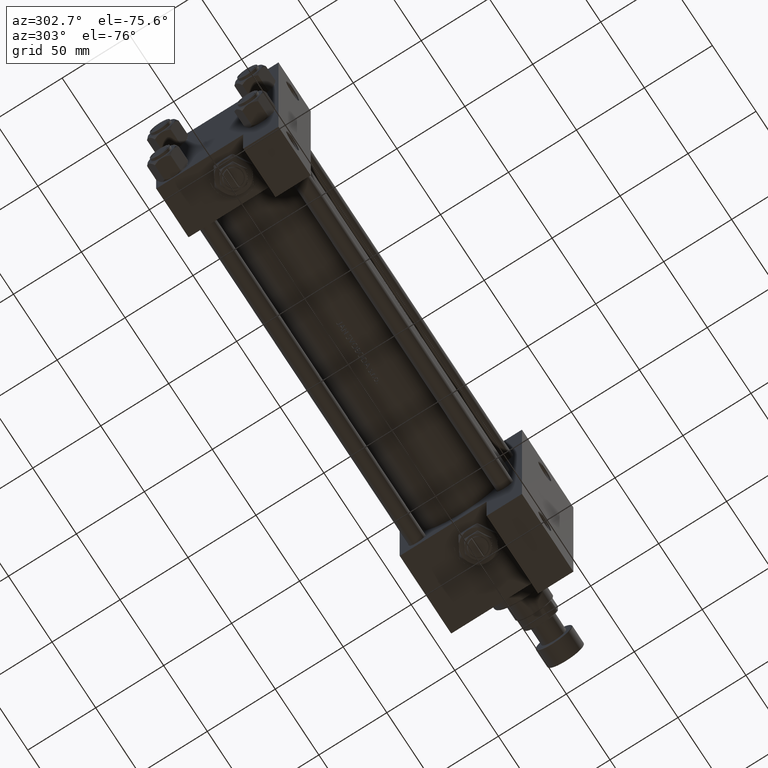
[diagram: clean part render]
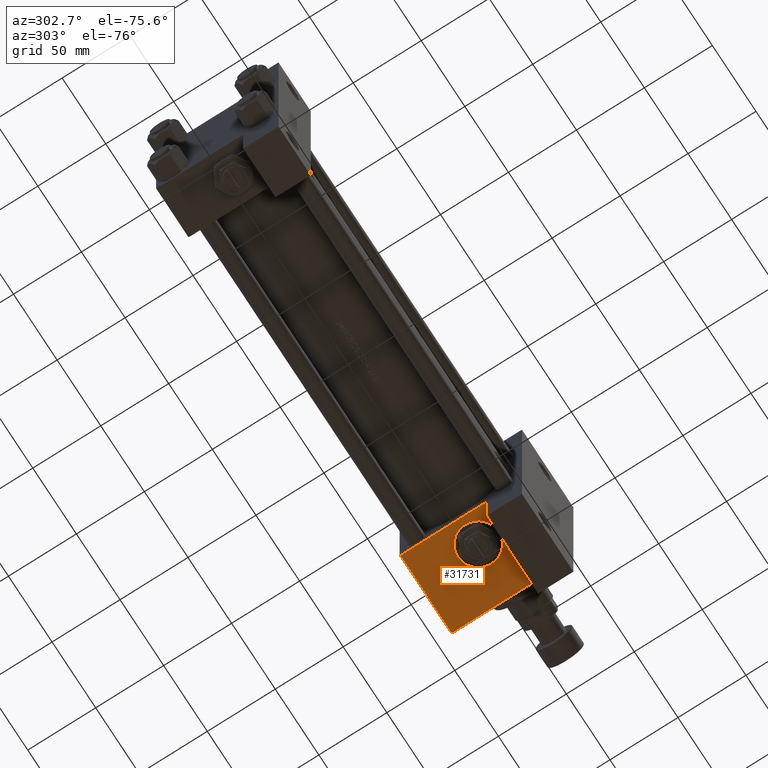
[diagram: same view with one face highlighted and labeled with its STEP entity id]
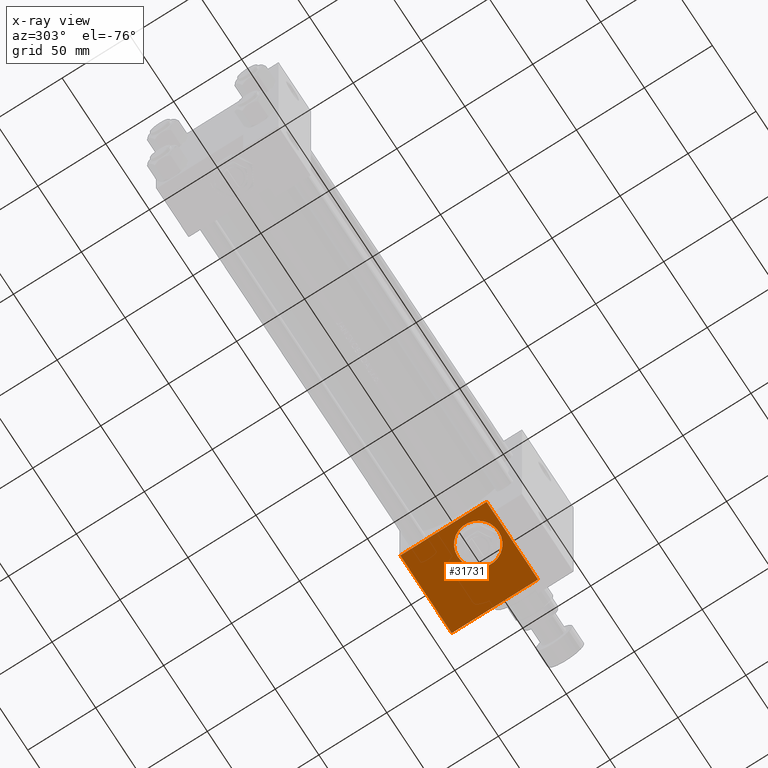
[diagram: x-ray of the same camera — body ghosted, the highlighted face saturated]
A machine part, auxiliary view. The second image highlights one B-rep face of the part: STEP entity #31731.
The next image is the same camera in x-ray: the body ghosted, the highlighted face saturated — about 0% of this face is hidden behind the body in this view.
In plain terms, the highlighted planar face has unit normal (0, 0, -1).
Its self-contained STEP definition (entity closure, byte-faithful):
#1638 = CARTESIAN_POINT ( 'NONE',  ( 299.0000000000000000, 45.00000000000001421, 0.000000000000000000 ) ) ;
#1694 = DIRECTION ( 'NONE',  ( 1.000000000000000000, 0.000000000000000000, 0.000000000000000000 ) ) ;
#2437 = VERTEX_POINT ( 'NONE', #44160 ) ;
#3980 = VERTEX_POINT ( 'NONE', #45172 ) ;
#4080 = ORIENTED_EDGE ( 'NONE', *, *, #47627, .F. ) ;
#4688 = AXIS2_PLACEMENT_3D ( 'NONE', #1638, #43464, #24711 ) ;
#4984 = VERTEX_POINT ( 'NONE', #32953 ) ;
#5484 = ORIENTED_EDGE ( 'NONE', *, *, #26638, .F. ) ;
#5803 = DIRECTION ( 'NONE',  ( -1.000000000000000000, 1.411300455031978640E-15, -0.000000000000000000 ) ) ;
#10713 = PLANE ( 'NONE',  #35000 ) ;
#11325 = VECTOR ( 'NONE', #32028, 1000.000000000000000 ) ;
#14069 = CARTESIAN_POINT ( 'NONE',  ( 337.9999999999999432, 44.99999999999992895, -19.00000000000000000 ) ) ;
#15645 = EDGE_CURVE ( 'NONE', #4984, #2437, #27345, .T. ) ;
#16089 = LINE ( 'NONE', #27988, #11325 ) ;
#17428 = CARTESIAN_POINT ( 'NONE',  ( 337.9999999999999432, 45.00000000000001421, 44.49999999999994316 ) ) ;
#18240 = LINE ( 'NONE', #28880, #44423 ) ;
#19273 = CARTESIAN_POINT ( 'NONE',  ( 278.9999999999999432, 45.00000000000001421, 44.49999999999994316 ) ) ;
#19305 = VECTOR ( 'NONE', #1694, 1000.000000000000000 ) ;
#20533 = ORIENTED_EDGE ( 'NONE', *, *, #15645, .F. ) ;
#21036 = EDGE_CURVE ( 'NONE', #25934, #47887, #28566, .T. ) ;
#21925 = EDGE_LOOP ( 'NONE', ( #5484, #32348, #22840, #42874 ) ) ;
#22371 = CARTESIAN_POINT ( 'NONE',  ( 337.9999999999999432, 45.00000000000001421, 45.00000000000000000 ) ) ;
#22840 = ORIENTED_EDGE ( 'NONE', *, *, #25540, .T. ) ;
#23154 = EDGE_CURVE ( 'NONE', #42748, #3980, #18240, .T. ) ;
#23537 = VECTOR ( 'NONE', #44623, 1000.000000000000000 ) ;
#24711 = DIRECTION ( 'NONE',  ( 0.000000000000000000, 0.000000000000000000, 1.000000000000000000 ) ) ;
#25540 = EDGE_CURVE ( 'NONE', #47887, #42748, #16089, .T. ) ;
#25934 = VERTEX_POINT ( 'NONE', #19273 ) ;
#26638 = EDGE_CURVE ( 'NONE', #25934, #3980, #32232, .T. ) ;
#27345 = CIRCLE ( 'NONE', #4688, 15.00000000000002487 ) ;
#27988 = CARTESIAN_POINT ( 'NONE',  ( 337.9999999999999432, 45.00000000000001421, 45.00000000000000000 ) ) ;
#28566 = LINE ( 'NONE', #17428, #19305 ) ;
#28880 = CARTESIAN_POINT ( 'NONE',  ( 278.9999999999999432, 45.00000000000001421, -19.00000000000000000 ) ) ;
#29735 = FACE_BOUND ( 'NONE', #33945, .T. ) ;
#30629 = DIRECTION ( 'NONE',  ( 0.000000000000000000, 0.000000000000000000, 1.000000000000000000 ) ) ;
#31731 = ADVANCED_FACE ( 'NONE', ( #29735, #44939 ), #10713, .T. ) ;
#32028 = DIRECTION ( 'NONE',  ( 0.000000000000000000, 0.000000000000000000, -1.000000000000000000 ) ) ;
#32164 = CIRCLE ( 'NONE', #47545, 15.00000000000002487 ) ;
#32232 = LINE ( 'NONE', #44874, #23537 ) ;
#32348 = ORIENTED_EDGE ( 'NONE', *, *, #21036, .T. ) ;
#32953 = CARTESIAN_POINT ( 'NONE',  ( 299.0000000000000000, 45.00000000000001421, -15.00000000000002487 ) ) ;
#33945 = EDGE_LOOP ( 'NONE', ( #4080, #20533 ) ) ;
#35000 = AXIS2_PLACEMENT_3D ( 'NONE', #22371, #45931, #49232 ) ;
#42748 = VERTEX_POINT ( 'NONE', #14069 ) ;
#42874 = ORIENTED_EDGE ( 'NONE', *, *, #23154, .T. ) ;
#43464 = DIRECTION ( 'NONE',  ( 0.000000000000000000, 1.000000000000000000, 0.000000000000000000 ) ) ;
#44160 = CARTESIAN_POINT ( 'NONE',  ( 299.0000000000000000, 45.00000000000001421, 15.00000000000002487 ) ) ;
#44423 = VECTOR ( 'NONE', #5803, 1000.000000000000000 ) ;
#44623 = DIRECTION ( 'NONE',  ( 0.000000000000000000, 0.000000000000000000, -1.000000000000000000 ) ) ;
#44874 = CARTESIAN_POINT ( 'NONE',  ( 278.9999999999999432, 45.00000000000001421, 45.00000000000000000 ) ) ;
#44939 = FACE_OUTER_BOUND ( 'NONE', #21925, .T. ) ;
#45172 = CARTESIAN_POINT ( 'NONE',  ( 278.9999999999999432, 45.00000000000001421, -18.99999999999997513 ) ) ;
#45833 = CARTESIAN_POINT ( 'NONE',  ( 299.0000000000000000, 45.00000000000001421, 0.000000000000000000 ) ) ;
#45931 = DIRECTION ( 'NONE',  ( -0.000000000000000000, 1.000000000000000000, 0.000000000000000000 ) ) ;
#47545 = AXIS2_PLACEMENT_3D ( 'NONE', #45833, #50148, #30629 ) ;
#47627 = EDGE_CURVE ( 'NONE', #2437, #4984, #32164, .T. ) ;
#47887 = VERTEX_POINT ( 'NONE', #48084 ) ;
#48084 = CARTESIAN_POINT ( 'NONE',  ( 337.9999999999999432, 45.00000000000001421, 44.49999999999994316 ) ) ;
#49232 = DIRECTION ( 'NONE',  ( 0.000000000000000000, -0.000000000000000000, 1.000000000000000000 ) ) ;
#50148 = DIRECTION ( 'NONE',  ( 0.000000000000000000, 1.000000000000000000, 0.000000000000000000 ) ) ;